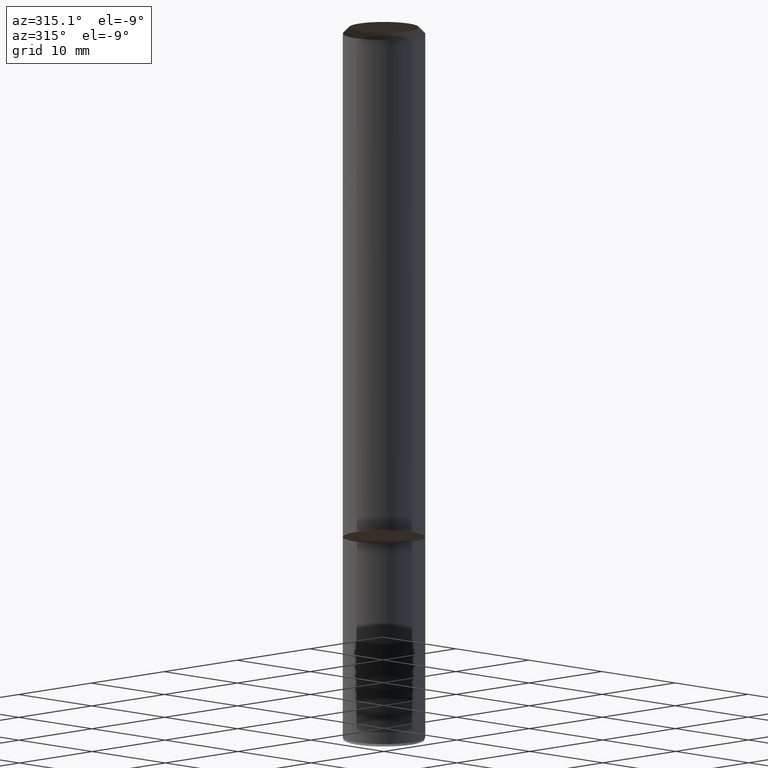
[diagram: clean part render]
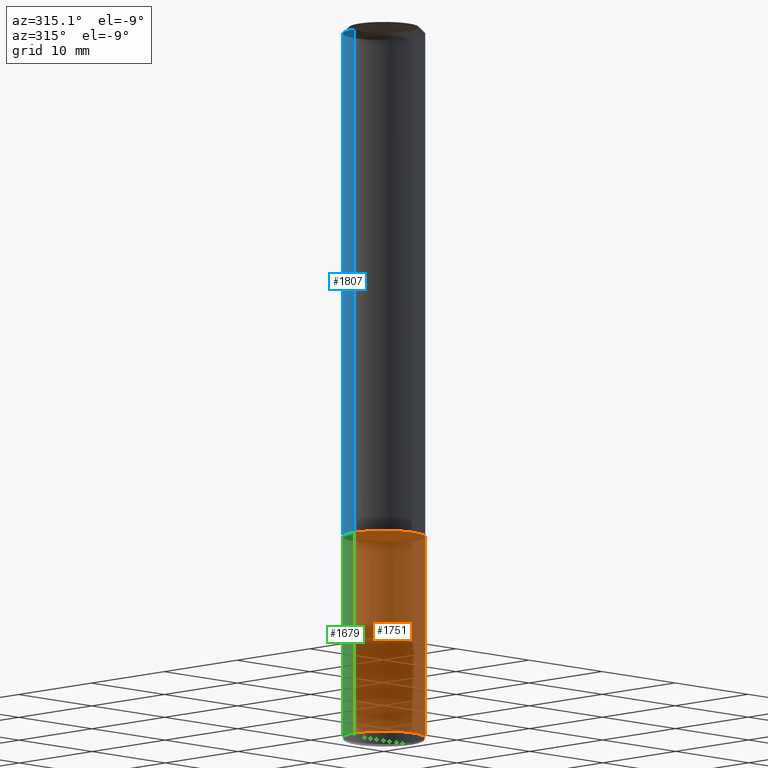
[diagram: same view with three faces highlighted in distinct colors, each labeled with its STEP entity id]
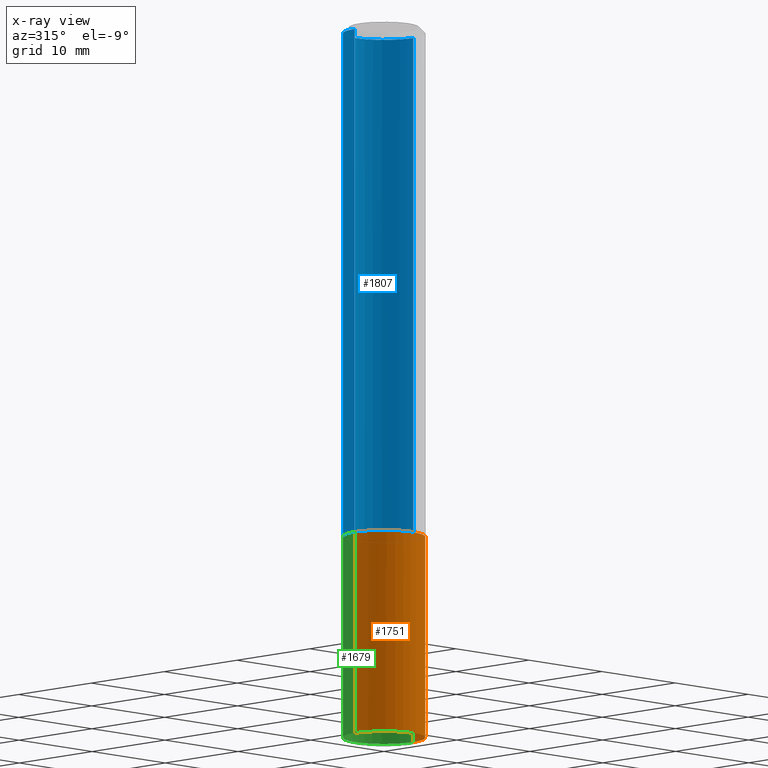
[diagram: x-ray of the same camera — body ghosted, the three highlighted faces saturated]
A machine part, auxiliary view with three faces highlighted in distinct colors.
The next image is the same camera in x-ray (body ghosted, the three faces saturated) — at least one of them is partly hidden behind the body in this view.
Their STEP definitions:

[orange] entity #1751 — the highlighted face is a freeform B-spline surface patch.
#1569=CARTESIAN_POINT('',(4.0,0.0,-19.7));
#1573=CARTESIAN_POINT('',(-4.0,0.0,-19.7));
#1574=CARTESIAN_POINT('',(4.0,0.0,0.0));
#1578=CARTESIAN_POINT('',(-4.0,0.0,0.0));
#1592=CARTESIAN_POINT('',(-4.0,-4.0,-19.7));
#1593=CARTESIAN_POINT('',(0.0,-4.0,-19.7));
#1594=CARTESIAN_POINT('',(4.0,-4.0,-19.7));
#1595=CARTESIAN_POINT('',(-4.0,-4.0,0.0));
#1596=CARTESIAN_POINT('',(0.0,-4.0,0.0));
#1597=CARTESIAN_POINT('',(4.0,-4.0,0.0));
#1732=(
BOUNDED_SURFACE()
B_SPLINE_SURFACE(1,2,(
(#1573,#1592,#1593,#1594,#1569),
(#1578,#1595,#1596,#1597,#1574)
), .UNSPECIFIED.,.F.,.F.,.F.)
B_SPLINE_SURFACE_WITH_KNOTS((2,2),(3,2,3),(
0.0,1.0),(
0.0,0.5,1.0), .UNSPECIFIED.)
GEOMETRIC_REPRESENTATION_ITEM()
RATIONAL_B_SPLINE_SURFACE(((1.0,0.707106781187,1.0,0.707106781187,1.0),
(1.0,0.707106781187,1.0,0.707106781187,1.0)
))
REPRESENTATION_ITEM('')
SURFACE()
);
#1733=(
BOUNDED_CURVE()
B_SPLINE_CURVE(1,(#1578,#1573),.UNSPECIFIED.,.F.,.F.)
B_SPLINE_CURVE_WITH_KNOTS((2,2),
(0.0,1.0),.UNSPECIFIED.)
CURVE()
GEOMETRIC_REPRESENTATION_ITEM()
RATIONAL_B_SPLINE_CURVE((1.0,1.0))
REPRESENTATION_ITEM('')
);
#1734=(
BOUNDED_CURVE()
B_SPLINE_CURVE(2,(#1573,#1592,#1593,#1594,#1569),.UNSPECIFIED.,.F.,.F.)
B_SPLINE_CURVE_WITH_KNOTS((3,2,3),
(0.0,0.5,1.0),.UNSPECIFIED.)
CURVE()
GEOMETRIC_REPRESENTATION_ITEM()
RATIONAL_B_SPLINE_CURVE((1.0,0.707106781187,1.0,0.707106781187,1.0))
REPRESENTATION_ITEM('')
);
#1735=(
BOUNDED_CURVE()
B_SPLINE_CURVE(1,(#1569,#1574),.UNSPECIFIED.,.F.,.F.)
B_SPLINE_CURVE_WITH_KNOTS((2,2),
(0.0,1.0),.UNSPECIFIED.)
CURVE()
GEOMETRIC_REPRESENTATION_ITEM()
RATIONAL_B_SPLINE_CURVE((1.0,1.0))
REPRESENTATION_ITEM('')
);
#1736=(
BOUNDED_CURVE()
B_SPLINE_CURVE(2,(#1574,#1597,#1596,#1595,#1578),.UNSPECIFIED.,.F.,.F.)
B_SPLINE_CURVE_WITH_KNOTS((3,2,3),
(0.0,0.5,1.0),.UNSPECIFIED.)
CURVE()
GEOMETRIC_REPRESENTATION_ITEM()
RATIONAL_B_SPLINE_CURVE((1.0,0.707106781187,1.0,0.707106781187,1.0))
REPRESENTATION_ITEM('')
);
#1737=VERTEX_POINT('',#1569);
#1738=VERTEX_POINT('',#1573);
#1739=VERTEX_POINT('',#1574);
#1740=VERTEX_POINT('',#1578);
#1741=EDGE_CURVE('',#1740,#1738,#1733,.T.);
#1742=EDGE_CURVE('',#1738,#1737,#1734,.T.);
#1743=EDGE_CURVE('',#1737,#1739,#1735,.T.);
#1744=EDGE_CURVE('',#1739,#1740,#1736,.T.);
#1745=ORIENTED_EDGE('',*,*,#1741,.T.);
#1746=ORIENTED_EDGE('',*,*,#1742,.T.);
#1747=ORIENTED_EDGE('',*,*,#1743,.T.);
#1748=ORIENTED_EDGE('',*,*,#1744,.T.);
#1749=EDGE_LOOP('',(#1745,#1746,#1747,#1748));
#1750=FACE_OUTER_BOUND('',#1749,.T.);
#1751=ADVANCED_FACE('',(#1750),#1732,.T.);

[blue] entity #1807 — the highlighted face is a freeform B-spline surface patch.
#1574=CARTESIAN_POINT('',(4.0,0.0,0.0));
#1575=CARTESIAN_POINT('',(4.0,4.0,0.0));
#1576=CARTESIAN_POINT('',(0.0,4.0,0.0));
#1577=CARTESIAN_POINT('',(-4.0,4.0,0.0));
#1578=CARTESIAN_POINT('',(-4.0,0.0,0.0));
#1598=CARTESIAN_POINT('',(4.0,0.0,49.4));
#1599=CARTESIAN_POINT('',(4.0,4.0,49.4));
#1600=CARTESIAN_POINT('',(0.0,4.0,49.4));
#1601=CARTESIAN_POINT('',(-4.0,4.0,49.4));
#1602=CARTESIAN_POINT('',(-4.0,0.0,49.4));
#1788=(
BOUNDED_SURFACE()
B_SPLINE_SURFACE(1,2,(
(#1574,#1575,#1576,#1577,#1578),
(#1598,#1599,#1600,#1601,#1602)
), .UNSPECIFIED.,.F.,.F.,.F.)
B_SPLINE_SURFACE_WITH_KNOTS((2,2),(3,2,3),(
0.0,1.0),(
0.0,0.5,1.0), .UNSPECIFIED.)
GEOMETRIC_REPRESENTATION_ITEM()
RATIONAL_B_SPLINE_SURFACE(((1.0,0.707106781187,1.0,0.707106781187,1.0),
(1.0,0.707106781187,1.0,0.707106781187,1.0)
))
REPRESENTATION_ITEM('')
SURFACE()
);
#1789=(
BOUNDED_CURVE()
B_SPLINE_CURVE(2,(#1598,#1599,#1600,#1601,#1602),.UNSPECIFIED.,.F.,.F.)
B_SPLINE_CURVE_WITH_KNOTS((3,2,3),
(0.0,0.5,1.0),.UNSPECIFIED.)
CURVE()
GEOMETRIC_REPRESENTATION_ITEM()
RATIONAL_B_SPLINE_CURVE((1.0,0.707106781187,1.0,0.707106781187,1.0))
REPRESENTATION_ITEM('')
);
#1790=(
BOUNDED_CURVE()
B_SPLINE_CURVE(1,(#1602,#1578),.UNSPECIFIED.,.F.,.F.)
B_SPLINE_CURVE_WITH_KNOTS((2,2),
(0.0,1.0),.UNSPECIFIED.)
CURVE()
GEOMETRIC_REPRESENTATION_ITEM()
RATIONAL_B_SPLINE_CURVE((1.0,1.0))
REPRESENTATION_ITEM('')
);
#1791=(
BOUNDED_CURVE()
B_SPLINE_CURVE(2,(#1578,#1577,#1576,#1575,#1574),.UNSPECIFIED.,.F.,.F.)
B_SPLINE_CURVE_WITH_KNOTS((3,2,3),
(0.0,0.5,1.0),.UNSPECIFIED.)
CURVE()
GEOMETRIC_REPRESENTATION_ITEM()
RATIONAL_B_SPLINE_CURVE((1.0,0.707106781187,1.0,0.707106781187,1.0))
REPRESENTATION_ITEM('')
);
#1792=(
BOUNDED_CURVE()
B_SPLINE_CURVE(1,(#1574,#1598),.UNSPECIFIED.,.F.,.F.)
B_SPLINE_CURVE_WITH_KNOTS((2,2),
(0.0,1.0),.UNSPECIFIED.)
CURVE()
GEOMETRIC_REPRESENTATION_ITEM()
RATIONAL_B_SPLINE_CURVE((1.0,1.0))
REPRESENTATION_ITEM('')
);
#1793=VERTEX_POINT('',#1574);
#1794=VERTEX_POINT('',#1578);
#1795=VERTEX_POINT('',#1598);
#1796=VERTEX_POINT('',#1602);
#1797=EDGE_CURVE('',#1795,#1796,#1789,.T.);
#1798=EDGE_CURVE('',#1796,#1794,#1790,.T.);
#1799=EDGE_CURVE('',#1794,#1793,#1791,.T.);
#1800=EDGE_CURVE('',#1793,#1795,#1792,.T.);
#1801=ORIENTED_EDGE('',*,*,#1797,.T.);
#1802=ORIENTED_EDGE('',*,*,#1798,.T.);
#1803=ORIENTED_EDGE('',*,*,#1799,.T.);
#1804=ORIENTED_EDGE('',*,*,#1800,.T.);
#1805=EDGE_LOOP('',(#1801,#1802,#1803,#1804));
#1806=FACE_OUTER_BOUND('',#1805,.T.);
#1807=ADVANCED_FACE('',(#1806),#1788,.T.);

[green] entity #1679 — the highlighted face is a freeform B-spline surface patch.
#1569=CARTESIAN_POINT('',(4.0,0.0,-19.7));
#1570=CARTESIAN_POINT('',(4.0,4.0,-19.7));
#1571=CARTESIAN_POINT('',(0.0,4.0,-19.7));
#1572=CARTESIAN_POINT('',(-4.0,4.0,-19.7));
#1573=CARTESIAN_POINT('',(-4.0,0.0,-19.7));
#1574=CARTESIAN_POINT('',(4.0,0.0,0.0));
#1575=CARTESIAN_POINT('',(4.0,4.0,0.0));
#1576=CARTESIAN_POINT('',(0.0,4.0,0.0));
#1577=CARTESIAN_POINT('',(-4.0,4.0,0.0));
#1578=CARTESIAN_POINT('',(-4.0,0.0,0.0));
#1660=(
BOUNDED_SURFACE()
B_SPLINE_SURFACE(1,2,(
(#1569,#1570,#1571,#1572,#1573),
(#1574,#1575,#1576,#1577,#1578)
), .UNSPECIFIED.,.F.,.F.,.F.)
B_SPLINE_SURFACE_WITH_KNOTS((2,2),(3,2,3),(
0.0,1.0),(
0.0,0.5,1.0), .UNSPECIFIED.)
GEOMETRIC_REPRESENTATION_ITEM()
RATIONAL_B_SPLINE_SURFACE(((1.0,0.707106781187,1.0,0.707106781187,1.0),
(1.0,0.707106781187,1.0,0.707106781187,1.0)
))
REPRESENTATION_ITEM('')
SURFACE()
);
#1661=(
BOUNDED_CURVE()
B_SPLINE_CURVE(2,(#1574,#1575,#1576,#1577,#1578),.UNSPECIFIED.,.F.,.F.)
B_SPLINE_CURVE_WITH_KNOTS((3,2,3),
(0.0,0.5,1.0),.UNSPECIFIED.)
CURVE()
GEOMETRIC_REPRESENTATION_ITEM()
RATIONAL_B_SPLINE_CURVE((1.0,0.707106781187,1.0,0.707106781187,1.0))
REPRESENTATION_ITEM('')
);
#1662=(
BOUNDED_CURVE()
B_SPLINE_CURVE(1,(#1578,#1573),.UNSPECIFIED.,.F.,.F.)
B_SPLINE_CURVE_WITH_KNOTS((2,2),
(0.0,1.0),.UNSPECIFIED.)
CURVE()
GEOMETRIC_REPRESENTATION_ITEM()
RATIONAL_B_SPLINE_CURVE((1.0,1.0))
REPRESENTATION_ITEM('')
);
#1663=(
BOUNDED_CURVE()
B_SPLINE_CURVE(2,(#1573,#1572,#1571,#1570,#1569),.UNSPECIFIED.,.F.,.F.)
B_SPLINE_CURVE_WITH_KNOTS((3,2,3),
(0.0,0.5,1.0),.UNSPECIFIED.)
CURVE()
GEOMETRIC_REPRESENTATION_ITEM()
RATIONAL_B_SPLINE_CURVE((1.0,0.707106781187,1.0,0.707106781187,1.0))
REPRESENTATION_ITEM('')
);
#1664=(
BOUNDED_CURVE()
B_SPLINE_CURVE(1,(#1569,#1574),.UNSPECIFIED.,.F.,.F.)
B_SPLINE_CURVE_WITH_KNOTS((2,2),
(0.0,1.0),.UNSPECIFIED.)
CURVE()
GEOMETRIC_REPRESENTATION_ITEM()
RATIONAL_B_SPLINE_CURVE((1.0,1.0))
REPRESENTATION_ITEM('')
);
#1665=VERTEX_POINT('',#1569);
#1666=VERTEX_POINT('',#1573);
#1667=VERTEX_POINT('',#1574);
#1668=VERTEX_POINT('',#1578);
#1669=EDGE_CURVE('',#1667,#1668,#1661,.T.);
#1670=EDGE_CURVE('',#1668,#1666,#1662,.T.);
#1671=EDGE_CURVE('',#1666,#1665,#1663,.T.);
#1672=EDGE_CURVE('',#1665,#1667,#1664,.T.);
#1673=ORIENTED_EDGE('',*,*,#1669,.T.);
#1674=ORIENTED_EDGE('',*,*,#1670,.T.);
#1675=ORIENTED_EDGE('',*,*,#1671,.T.);
#1676=ORIENTED_EDGE('',*,*,#1672,.T.);
#1677=EDGE_LOOP('',(#1673,#1674,#1675,#1676));
#1678=FACE_OUTER_BOUND('',#1677,.T.);
#1679=ADVANCED_FACE('',(#1678),#1660,.T.);